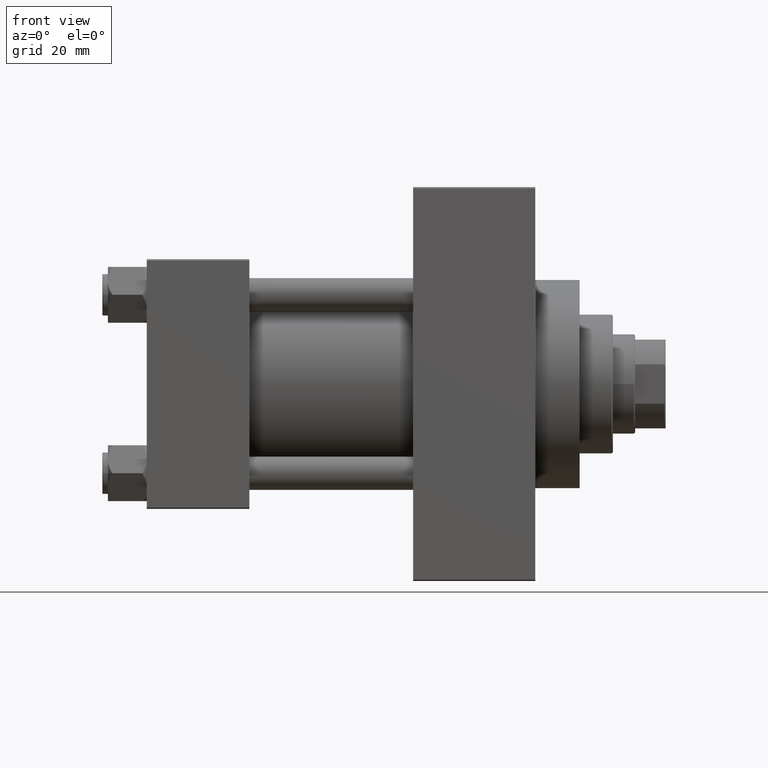
[diagram: clean part render]
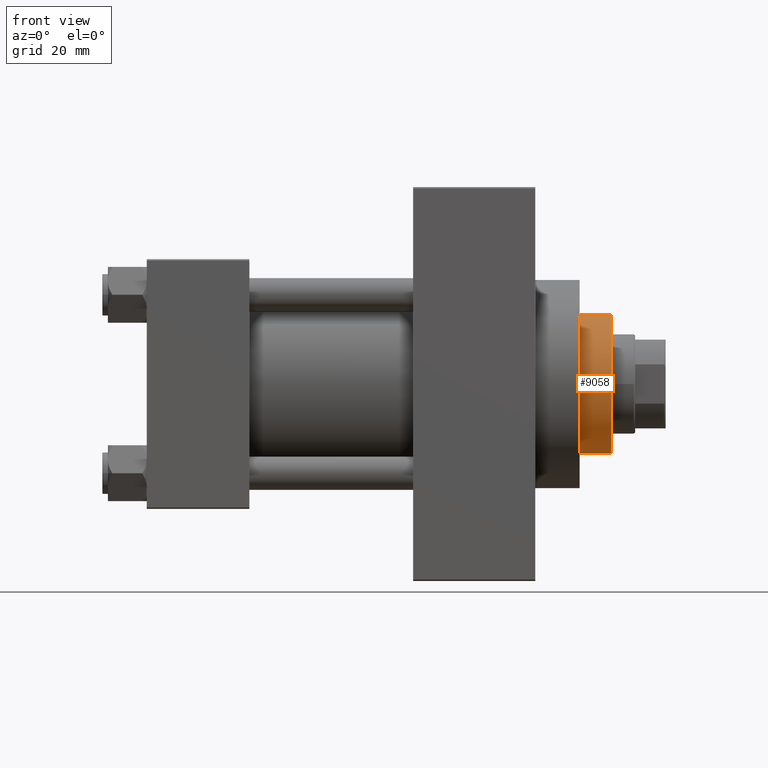
[diagram: same view with one face highlighted and labeled with its STEP entity id]
A machine part, front view. The second image highlights one B-rep face of the part: STEP entity #9058.
In plain terms, the highlighted cylindrical surface (partial cylindrical patch) has radius 25 mm, axis along (-1, 0, 0).
Its self-contained STEP definition (entity closure, byte-faithful):
#274 = AXIS2_PLACEMENT_3D ( 'NONE', #22986, #9286, #38537 ) ;
#1420 = AXIS2_PLACEMENT_3D ( 'NONE', #24316, #35097, #27209 ) ;
#1746 = EDGE_LOOP ( 'NONE', ( #34994, #46343, #39657, #4563 ) ) ;
#4563 = ORIENTED_EDGE ( 'NONE', *, *, #19675, .F. ) ;
#6488 = CARTESIAN_POINT ( 'NONE',  ( -25.00000000000000000, 0.000000000000000000, 55.26000000000000512 ) ) ;
#6696 = VERTEX_POINT ( 'NONE', #13374 ) ;
#7601 = EDGE_CURVE ( 'NONE', #6696, #39221, #24423, .T. ) ;
#9058 = ADVANCED_FACE ( 'NONE', ( #26664 ), #41037, .T. ) ;
#9286 = DIRECTION ( 'NONE',  ( 0.000000000000000000, 0.000000000000000000, -1.000000000000000000 ) ) ;
#9381 = CIRCLE ( 'NONE', #274, 25.00000000000000000 ) ;
#13129 = VECTOR ( 'NONE', #38647, 1000.000000000000000 ) ;
#13374 = CARTESIAN_POINT ( 'NONE',  ( 25.00000000000000000, 3.061616997868383043E-15, 54.76000000000000512 ) ) ;
#14077 = CARTESIAN_POINT ( 'NONE',  ( 25.00000000000000000, 3.061616997868383043E-15, 43.25999999999999801 ) ) ;
#19470 = DIRECTION ( 'NONE',  ( -0.000000000000000000, -0.000000000000000000, -1.000000000000000000 ) ) ;
#19675 = EDGE_CURVE ( 'NONE', #41926, #37346, #31457, .T. ) ;
#19704 = CARTESIAN_POINT ( 'NONE',  ( 0.000000000000000000, 0.000000000000000000, 55.26000000000000512 ) ) ;
#20564 = CIRCLE ( 'NONE', #1420, 25.00000000000000000 ) ;
#22821 = DIRECTION ( 'NONE',  ( -1.000000000000000000, 0.000000000000000000, 0.000000000000000000 ) ) ;
#22986 = CARTESIAN_POINT ( 'NONE',  ( 0.000000000000000000, 0.000000000000000000, 54.76000000000000512 ) ) ;
#24316 = CARTESIAN_POINT ( 'NONE',  ( 0.000000000000000000, 0.000000000000000000, 43.25999999999999801 ) ) ;
#24423 = LINE ( 'NONE', #35442, #31969 ) ;
#26635 = EDGE_CURVE ( 'NONE', #41926, #6696, #9381, .T. ) ;
#26664 = FACE_OUTER_BOUND ( 'NONE', #1746, .T. ) ;
#27209 = DIRECTION ( 'NONE',  ( 1.000000000000000000, 0.000000000000000000, 0.000000000000000000 ) ) ;
#30825 = CARTESIAN_POINT ( 'NONE',  ( -25.00000000000000000, 0.000000000000000000, 43.25999999999999801 ) ) ;
#31457 = LINE ( 'NONE', #6488, #13129 ) ;
#31969 = VECTOR ( 'NONE', #38096, 1000.000000000000000 ) ;
#34994 = ORIENTED_EDGE ( 'NONE', *, *, #26635, .T. ) ;
#35097 = DIRECTION ( 'NONE',  ( 0.000000000000000000, 0.000000000000000000, 1.000000000000000000 ) ) ;
#35442 = CARTESIAN_POINT ( 'NONE',  ( 25.00000000000000000, 3.061616997868383043E-15, 55.26000000000000512 ) ) ;
#35832 = AXIS2_PLACEMENT_3D ( 'NONE', #19704, #19470, #22821 ) ;
#36563 = CARTESIAN_POINT ( 'NONE',  ( -25.00000000000000000, 0.000000000000000000, 54.76000000000000512 ) ) ;
#37346 = VERTEX_POINT ( 'NONE', #30825 ) ;
#38096 = DIRECTION ( 'NONE',  ( -0.000000000000000000, -0.000000000000000000, -1.000000000000000000 ) ) ;
#38537 = DIRECTION ( 'NONE',  ( 1.000000000000000000, 0.000000000000000000, 0.000000000000000000 ) ) ;
#38647 = DIRECTION ( 'NONE',  ( -0.000000000000000000, -0.000000000000000000, -1.000000000000000000 ) ) ;
#39221 = VERTEX_POINT ( 'NONE', #14077 ) ;
#39657 = ORIENTED_EDGE ( 'NONE', *, *, #41325, .T. ) ;
#41037 = CYLINDRICAL_SURFACE ( 'NONE', #35832, 25.00000000000000000 ) ;
#41325 = EDGE_CURVE ( 'NONE', #39221, #37346, #20564, .T. ) ;
#41926 = VERTEX_POINT ( 'NONE', #36563 ) ;
#46343 = ORIENTED_EDGE ( 'NONE', *, *, #7601, .T. ) ;